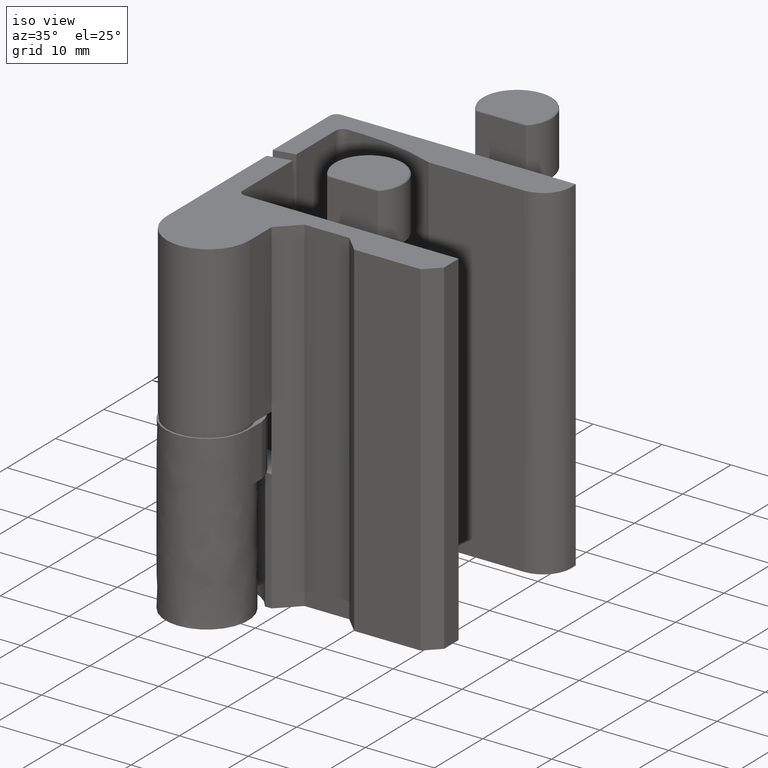
[diagram: clean part render]
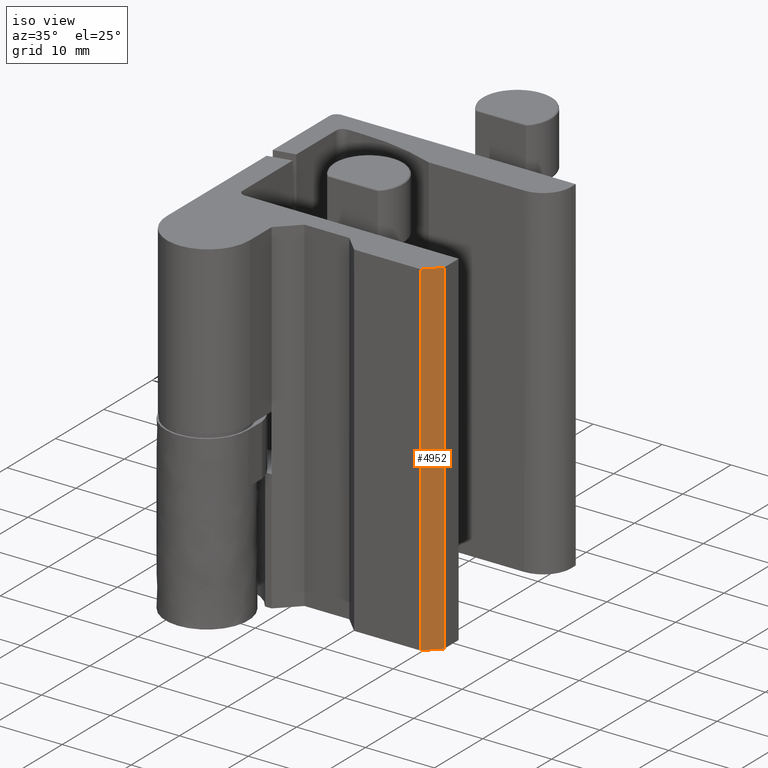
[diagram: same view with one face highlighted and labeled with its STEP entity id]
A machine part, iso view. The second image highlights one B-rep face of the part: STEP entity #4952.
In plain terms, the highlighted face is a freeform B-spline surface patch.
Its self-contained STEP definition (entity closure, byte-faithful):
#4536=CARTESIAN_POINT('',(29.500001470839202,7.000000249179270,-0.100000386218380));
#4537=VERTEX_POINT('',#4536);
#4545=CARTESIAN_POINT('',(27.500001371786102,5.000000158242591,-0.100000386218380));
#4546=VERTEX_POINT('',#4545);
#4547=CARTESIAN_POINT('',(27.500001371786102,5.000000158242591,-0.100000386218380));
#4548=CARTESIAN_POINT('',(29.500001470839202,7.000000249179270,-0.100000386218380));
#4549=QUASI_UNIFORM_CURVE('',1,(#4547,#4548),.UNSPECIFIED.,.F.,.U.);
#4550=EDGE_CURVE('',#4546,#4537,#4549,.T.);
#4631=CARTESIAN_POINT('',(29.500001298682651,7.000000308733380,49.900001988654402));
#4632=VERTEX_POINT('',#4631);
#4718=CARTESIAN_POINT('',(27.500001203687798,5.000000213738500,49.900001988654402));
#4719=VERTEX_POINT('',#4718);
#4725=CARTESIAN_POINT('',(29.500001298682651,7.000000308733380,49.900001988654402));
#4726=CARTESIAN_POINT('',(27.500001203687798,5.000000213738500,49.900001988654402));
#4727=QUASI_UNIFORM_CURVE('',1,(#4725,#4726),.UNSPECIFIED.,.F.,.U.);
#4728=EDGE_CURVE('',#4632,#4719,#4727,.T.);
#4929=CARTESIAN_POINT('',(27.500001371786102,5.000000158242591,-0.100000386218380));
#4930=CARTESIAN_POINT('',(27.500001203687798,5.000000213738500,49.900001988654402));
#4931=QUASI_UNIFORM_CURVE('',1,(#4929,#4930),.UNSPECIFIED.,.F.,.U.);
#4932=EDGE_CURVE('',#4546,#4719,#4931,.T.);
#4937=CARTESIAN_POINT('',(29.599901701090751,7.099900711141479,52.397501541005347));
#4938=CARTESIAN_POINT('',(27.400101429785551,4.900100439836256,52.397501541005347));
#4939=CARTESIAN_POINT('',(29.599901701090751,7.099900711141479,-2.597501726708744));
#4940=CARTESIAN_POINT('',(27.400101429785551,4.900100439836256,-2.597501726708744));
#4941=B_SPLINE_SURFACE_WITH_KNOTS('',1,1,((#4937,#4939),(#4938,#4940)),.UNSPECIFIED.,.F.,.F.,.U.,(2,2),(2,2),(0.0,3.110987378191842),(0.0,54.995003267714090),.UNSPECIFIED.);
#4942=ORIENTED_EDGE('',*,*,#4728,.T.);
#4943=ORIENTED_EDGE('',*,*,#4932,.F.);
#4944=ORIENTED_EDGE('',*,*,#4550,.T.);
#4945=CARTESIAN_POINT('',(29.500001470839202,7.000000249179270,-0.100000386218380));
#4946=CARTESIAN_POINT('',(29.500001298682651,7.000000308733380,49.900001988654402));
#4947=QUASI_UNIFORM_CURVE('',1,(#4945,#4946),.UNSPECIFIED.,.F.,.U.);
#4948=EDGE_CURVE('',#4537,#4632,#4947,.T.);
#4949=ORIENTED_EDGE('',*,*,#4948,.T.);
#4950=EDGE_LOOP('',(#4942,#4943,#4944,#4949));
#4951=FACE_OUTER_BOUND('',#4950,.T.);
#4952=ADVANCED_FACE('',(#4951),#4941,.T.);